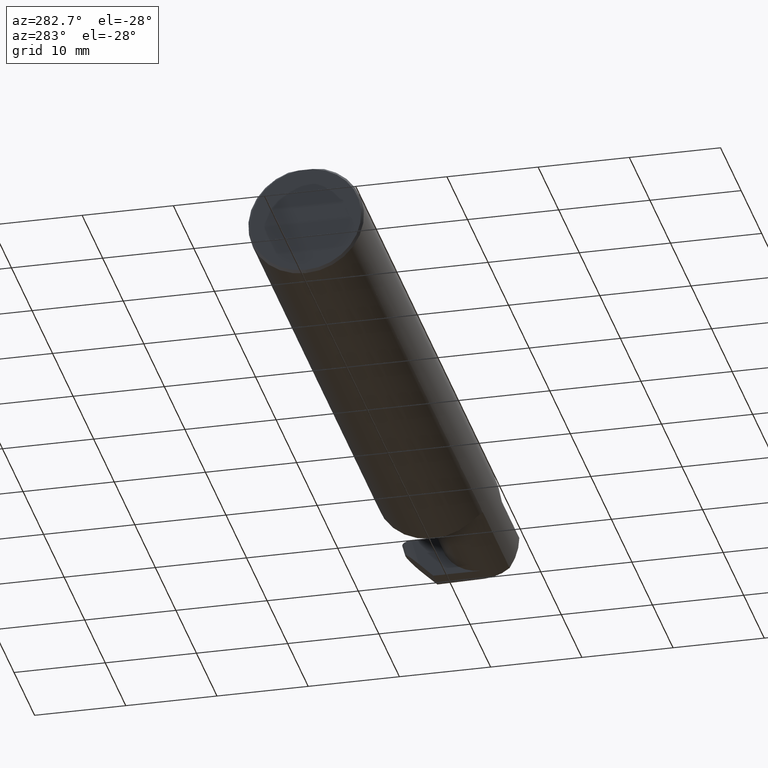
[diagram: clean part render]
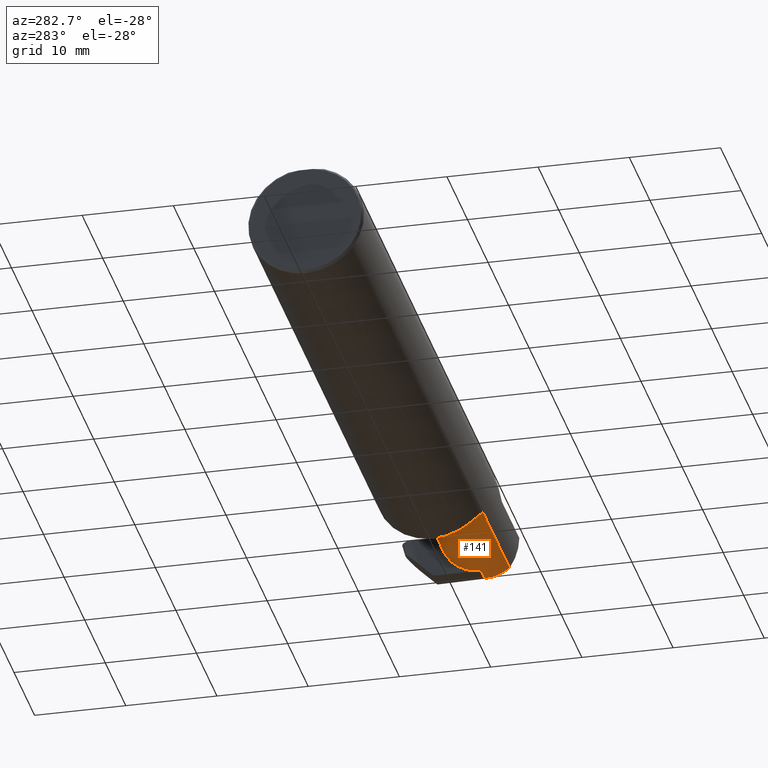
[diagram: same view with one face highlighted and labeled with its STEP entity id]
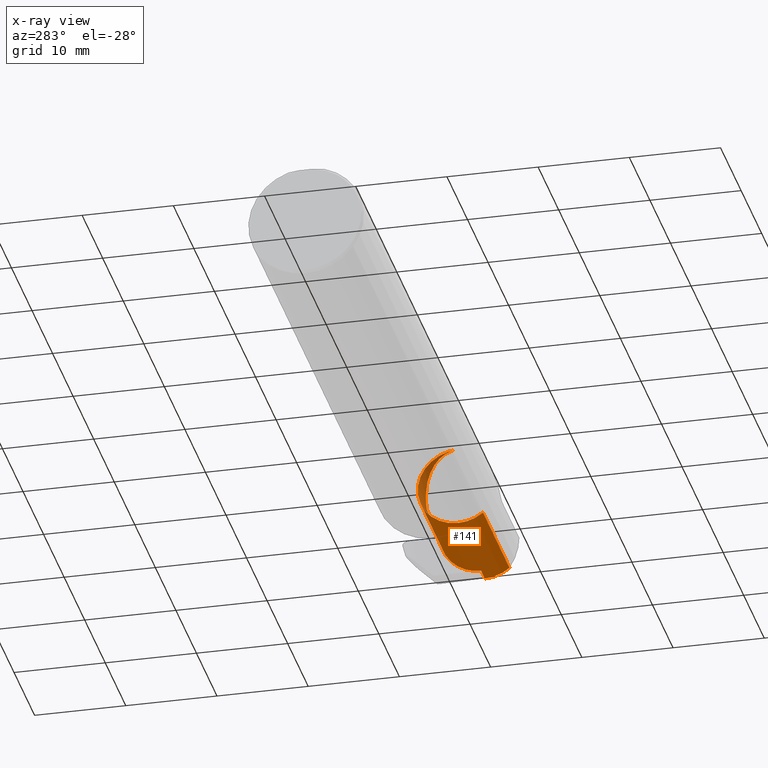
[diagram: x-ray of the same camera — body ghosted, the highlighted face saturated]
A machine part, auxiliary view. The second image highlights one B-rep face of the part: STEP entity #141.
The next image is the same camera in x-ray: the body ghosted, the highlighted face saturated — about 13% of this face is hidden behind the body in this view.
In plain terms, the highlighted cylindrical surface (partial cylindrical patch) has radius 4.445 mm, axis along (-1, -0, -0).
Its self-contained STEP definition (entity closure, byte-faithful):
#3 = CARTESIAN_POINT ( 'NONE',  ( 2.983360130692194634, -0.2080850024789288044, -0.1382955322609671633 ) ) ;
#12 = VERTEX_POINT ( 'NONE', #221 ) ;
#17 = CARTESIAN_POINT ( 'NONE',  ( 2.983360130692194634, -0.2080850024789288044, -0.1382955322609671633 ) ) ;
#31 = EDGE_CURVE ( 'NONE', #631, #330, #285, .T. ) ;
#53 = DIRECTION ( 'NONE',  ( 0.000000000000000000, 0.000000000000000000, 1.000000000000000000 ) ) ;
#58 = VERTEX_POINT ( 'NONE', #360 ) ;
#61 = LINE ( 'NONE', #120, #587 ) ;
#69 = ORIENTED_EDGE ( 'NONE', *, *, #837, .F. ) ;
#76 = DIRECTION ( 'NONE',  ( 1.000000000000000000, 0.000000000000000000, 0.000000000000000000 ) ) ;
#85 = CARTESIAN_POINT ( 'NONE',  ( 2.899134618722187362, 0.07411446490944718912, -0.002035803974313289428 ) ) ;
#87 = CARTESIAN_POINT ( 'NONE',  ( 2.690421435000000194, -0.2080850024789288044, -0.1382955322609671633 ) ) ;
#93 = CARTESIAN_POINT ( 'NONE',  ( 2.913428848522521708, -0.1008500000000001479, -0.1750000000000000444 ) ) ;
#118 = ORIENTED_EDGE ( 'NONE', *, *, #31, .F. ) ;
#120 = CARTESIAN_POINT ( 'NONE',  ( 3.402190948718818220, -0.1008500000000001340, -0.1750000000000000722 ) ) ;
#130 = VERTEX_POINT ( 'NONE', #596 ) ;
#141 = ADVANCED_FACE ( 'NONE', ( #474 ), #714, .T. ) ;
#153 = CARTESIAN_POINT ( 'NONE',  ( 2.450000000000000178, 0.07414999999999995206, 6.735557395310435121E-17 ) ) ;
#174 = CARTESIAN_POINT ( 'NONE',  ( 2.475000000000000089, -0.1008500000000001340, 0.000000000000000000 ) ) ;
#187 = EDGE_CURVE ( 'NONE', #293, #335, #603, .T. ) ;
#189 = EDGE_LOOP ( 'NONE', ( #243, #69, #569, #702, #528, #683, #118, #835, #786, #484 ) ) ;
#211 = CARTESIAN_POINT ( 'NONE',  ( 2.986463790105515770, -0.1008500000000001340, -0.1750000000000000722 ) ) ;
#214 = CARTESIAN_POINT ( 'NONE',  ( 2.913397403057193191, -0.001152430219566465564, -0.1750000000000001832 ) ) ;
#220 = CARTESIAN_POINT ( 'NONE',  ( 2.899099083631634599, 0.07407892981889442618, -0.004071607948626578856 ) ) ;
#221 = CARTESIAN_POINT ( 'NONE',  ( 2.899170153812740125, 0.07414999999999995206, 0.000000000000000000 ) ) ;
#243 = ORIENTED_EDGE ( 'NONE', *, *, #767, .T. ) ;
#271 = VECTOR ( 'NONE', #364, 39.37007874015748143 ) ;
#274 = CARTESIAN_POINT ( 'NONE',  ( 2.984022185481226774, -0.1771157075472506726, -0.1623092683844333528 ) ) ;
#282 = LINE ( 'NONE', #153, #697 ) ;
#285 = LINE ( 'NONE', #443, #271 ) ;
#293 = VERTEX_POINT ( 'NONE', #350 ) ;
#297 = CARTESIAN_POINT ( 'NONE',  ( 2.650000000000000355, 0.07414999999999984104, 4.286263797015729199E-17 ) ) ;
#311 = CIRCLE ( 'NONE', #409, 0.1750000000000000444 ) ;
#316 = EDGE_CURVE ( 'NONE', #330, #12, #577, .T. ) ;
#330 = VERTEX_POINT ( 'NONE', #347 ) ;
#335 = VERTEX_POINT ( 'NONE', #748 ) ;
#341 = DIRECTION ( 'NONE',  ( -1.000000000000000000, -0.000000000000000000, -0.000000000000000000 ) ) ;
#343 = EDGE_CURVE ( 'NONE', #472, #12, #282, .T. ) ;
#347 = CARTESIAN_POINT ( 'NONE',  ( 2.899063548541081836, 0.07404339472834166325, -0.006107411922939877391 ) ) ;
#350 = CARTESIAN_POINT ( 'NONE',  ( 2.475000000000000089, -0.1008500000000001340, 0.1749999999999984346 ) ) ;
#360 = CARTESIAN_POINT ( 'NONE',  ( 2.475000000000000089, -0.2080850024789288599, -0.1382955322609670246 ) ) ;
#364 = DIRECTION ( 'NONE',  ( -1.000000000000000000, -0.000000000000000000, -0.000000000000000000 ) ) ;
#366 = CARTESIAN_POINT ( 'NONE',  ( 2.475000000000000089, -0.1008500000000001340, 0.1749999999999984346 ) ) ;
#399 = DIRECTION ( 'NONE',  ( -1.000000000000000000, -0.000000000000000000, -0.000000000000000000 ) ) ;
#409 = AXIS2_PLACEMENT_3D ( 'NONE', #174, #632, #560 ) ;
#443 = CARTESIAN_POINT ( 'NONE',  ( 2.450000000000000178, 0.07404339472834170488, -0.006107411922938294456 ) ) ;
#445 = CARTESIAN_POINT ( 'NONE',  ( 2.650000000000000355, 0.07414999999999984104, 4.286263797015729199E-17 ) ) ;
#472 = VERTEX_POINT ( 'NONE', #297 ) ;
#474 = FACE_OUTER_BOUND ( 'NONE', #189, .T. ) ;
#484 = ORIENTED_EDGE ( 'NONE', *, *, #680, .F. ) ;
#486 = CARTESIAN_POINT ( 'NONE',  ( 2.899170153812740125, 0.07414999999999995206, 0.000000000000000000 ) ) ;
#494 =( BOUNDED_CURVE ( )  B_SPLINE_CURVE ( 3, ( #17, #274, #809, #211 ),
 .UNSPECIFIED., .F., .T. ) 
 B_SPLINE_CURVE_WITH_KNOTS ( ( 4, 4 ),
 ( 0.4474640105399515511, 1.107026853503853880 ),
 .UNSPECIFIED. ) 
 CURVE ( )  GEOMETRIC_REPRESENTATION_ITEM ( )  RATIONAL_B_SPLINE_CURVE ( ( 1.000000000000000000, 0.9640754331822833922, 0.9640754331822833922, 1.000000000000000000 ) ) 
 REPRESENTATION_ITEM ( '' )  );
#503 = CARTESIAN_POINT ( 'NONE',  ( 2.547487373415291412, 0.07414999999999996594, 0.1025126265847084578 ) ) ;
#525 = VERTEX_POINT ( 'NONE', #3 ) ;
#528 = ORIENTED_EDGE ( 'NONE', *, *, #343, .T. ) ;
#538 = CARTESIAN_POINT ( 'NONE',  ( 2.910321839925223752, 0.07404339472834164937, -0.006107411922940873990 ) ) ;
#549 = DIRECTION ( 'NONE',  ( -1.000000000000000000, -0.000000000000000000, -0.000000000000000000 ) ) ;
#551 =( BOUNDED_CURVE ( )  B_SPLINE_CURVE ( 3, ( #735, #214, #604, #611 ),
 .UNSPECIFIED., .F., .F. ) 
 B_SPLINE_CURVE_WITH_KNOTS ( ( 4, 4 ),
 ( 3.159045946109736214, 4.694935687864727925 ),
 .UNSPECIFIED. ) 
 CURVE ( )  GEOMETRIC_REPRESENTATION_ITEM ( )  RATIONAL_B_SPLINE_CURVE ( ( 1.000000000000000000, 0.8128932002257716061, 0.8128932002257716061, 1.000000000000000000 ) ) 
 REPRESENTATION_ITEM ( '' )  );
#560 = DIRECTION ( 'NONE',  ( 0.000000000000000000, 0.000000000000000000, 1.000000000000000000 ) ) ;
#568 = EDGE_CURVE ( 'NONE', #130, #779, #61, .T. ) ;
#569 = ORIENTED_EDGE ( 'NONE', *, *, #187, .F. ) ;
#577 = B_SPLINE_CURVE_WITH_KNOTS ( 'NONE', 3,
 ( #676, #220, #85, #486 ),
 .UNSPECIFIED., .F., .F.,
 ( 4, 4 ),
 ( 0.000000000000000000, 1.000000000000000000 ),
 .UNSPECIFIED. ) ;
#587 = VECTOR ( 'NONE', #780, 39.37007874015748143 ) ;
#596 = CARTESIAN_POINT ( 'NONE',  ( 2.986463790105515770, -0.1008500000000001340, -0.1750000000000000722 ) ) ;
#600 = DIRECTION ( 'NONE',  ( 0.000000000000000000, 0.000000000000000000, 1.000000000000000000 ) ) ;
#603 = CIRCLE ( 'NONE', #629, 0.1750000000000000444 ) ;
#604 = CARTESIAN_POINT ( 'NONE',  ( 2.912123349427337082, 0.07056399972054014369, -0.1057442486376025670 ) ) ;
#611 = CARTESIAN_POINT ( 'NONE',  ( 2.910321839925223752, 0.07404339472834164937, -0.006107411922940873990 ) ) ;
#615 = AXIS2_PLACEMENT_3D ( 'NONE', #724, #399, #600 ) ;
#629 = AXIS2_PLACEMENT_3D ( 'NONE', #844, #341, #53 ) ;
#631 = VERTEX_POINT ( 'NONE', #538 ) ;
#632 = DIRECTION ( 'NONE',  ( -1.000000000000000000, -0.000000000000000000, -0.000000000000000000 ) ) ;
#641 = VECTOR ( 'NONE', #549, 39.37007874015748143 ) ;
#674 = LINE ( 'NONE', #87, #641 ) ;
#676 = CARTESIAN_POINT ( 'NONE',  ( 2.899063548541081836, 0.07404339472834166325, -0.006107411922939877391 ) ) ;
#680 = EDGE_CURVE ( 'NONE', #525, #130, #494, .T. ) ;
#683 = ORIENTED_EDGE ( 'NONE', *, *, #316, .F. ) ;
#689 = CARTESIAN_POINT ( 'NONE',  ( 2.474999999999998757, 0.001662626584708303207, 0.1750000000000001277 ) ) ;
#697 = VECTOR ( 'NONE', #76, 39.37007874015748143 ) ;
#702 = ORIENTED_EDGE ( 'NONE', *, *, #825, .T. ) ;
#714 = CYLINDRICAL_SURFACE ( 'NONE', #615, 0.1750000000000001277 ) ;
#717 = EDGE_CURVE ( 'NONE', #779, #631, #551, .T. ) ;
#724 = CARTESIAN_POINT ( 'NONE',  ( 2.450000000000000178, -0.1008500000000001340, 0.000000000000000000 ) ) ;
#735 = CARTESIAN_POINT ( 'NONE',  ( 2.913428848522521708, -0.1008500000000001479, -0.1750000000000000444 ) ) ;
#748 = CARTESIAN_POINT ( 'NONE',  ( 2.475000000000000089, -0.1008500000000001340, -0.1750000000000000444 ) ) ;
#762 =( BOUNDED_CURVE ( )  B_SPLINE_CURVE ( 3, ( #366, #689, #503, #445 ),
 .UNSPECIFIED., .F., .T. ) 
 B_SPLINE_CURVE_WITH_KNOTS ( ( 4, 4 ),
 ( 0.000000000000000000, 1.570796326794896558 ),
 .UNSPECIFIED. ) 
 CURVE ( )  GEOMETRIC_REPRESENTATION_ITEM ( )  RATIONAL_B_SPLINE_CURVE ( ( 1.000000000000000000, 0.8047378541243649375, 0.8047378541243649375, 1.000000000000000000 ) ) 
 REPRESENTATION_ITEM ( '' )  );
#767 = EDGE_CURVE ( 'NONE', #525, #58, #674, .T. ) ;
#779 = VERTEX_POINT ( 'NONE', #93 ) ;
#780 = DIRECTION ( 'NONE',  ( -1.000000000000000000, -0.000000000000000000, -0.000000000000000000 ) ) ;
#786 = ORIENTED_EDGE ( 'NONE', *, *, #568, .F. ) ;
#809 = CARTESIAN_POINT ( 'NONE',  ( 2.985095289412896147, -0.1400387324517230192, -0.1750000000000001554 ) ) ;
#825 = EDGE_CURVE ( 'NONE', #293, #472, #762, .T. ) ;
#835 = ORIENTED_EDGE ( 'NONE', *, *, #717, .F. ) ;
#837 = EDGE_CURVE ( 'NONE', #335, #58, #311, .T. ) ;
#844 = CARTESIAN_POINT ( 'NONE',  ( 2.475000000000000089, -0.1008500000000001340, 0.000000000000000000 ) ) ;